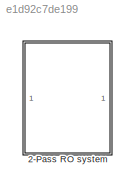
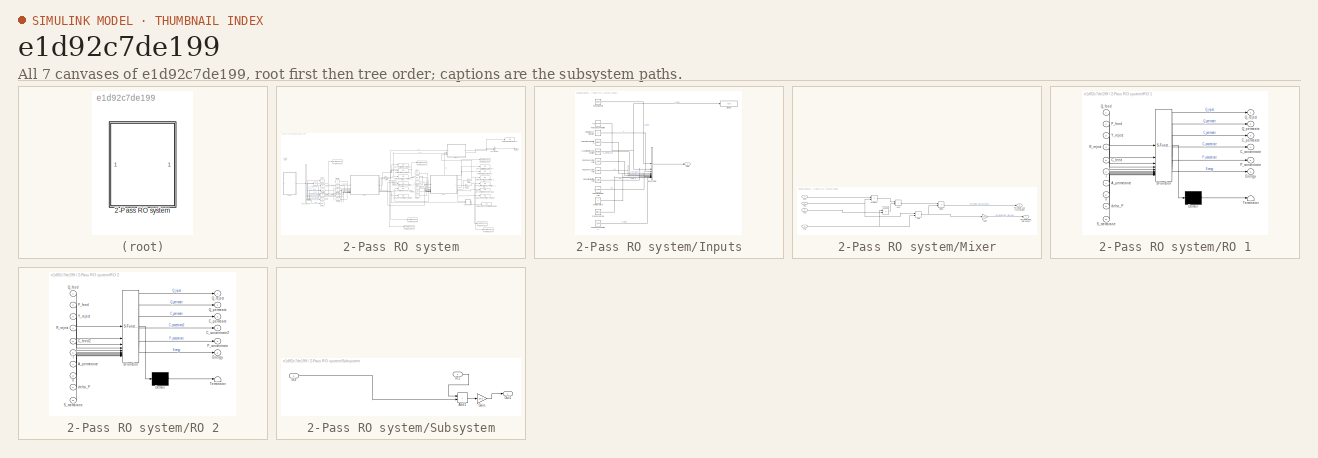
[diagram: thumbnail index - all 7 canvases of the model, root first then tree order]
MODEL slx_e1d92c7de199
KIND model
CONFIG AbsTol = auto
CONFIG EnableMultiTasking = off
CONFIG FixedStep = auto
CONFIG MaxStep = auto
CONFIG MinStep = auto
CONFIG RelTol = 1e-3
CONFIG SampleTimeConstraint = Unconstrained
CONFIG SolverName = VariableStepAuto
CONFIG StartTime = 0.0
CONFIG StopTime = 7*3600
WORKSPACE source: mxarray member
WORKSPACE H2_D = 74
WORKSPACE H2_R = 4124.48151676
WORKSPACE H2_T = [-56.55 -50 -40 -30 -20 -10 -5 -4 -3 -2 -1 0 ... (52 elements, 1x52)]
WORKSPACE H2_h = [2783.66044046 2873.94181646 3012.62601981 3152.22537302 3292.62486344 3433.7213836 3504.50184296 3518.67512521 3532.85394544 3547.03822323 3561.22787913 3575.42283463 ... (52 elements, 1x52)]
WORKSPACE H2_k = [142.834673487 146.602208511 152.236222043 157.732550942 163.09765294 168.338595937 170.914793442 171.426608923 171.937300227 172.446874689 172.955339635 173.462702375 ... (52 elements, 1x52)]
WORKSPACE H2_mu = [7.13280985169 7.28192581803 7.50683010986 7.72860158312 7.94743907375 8.16352107178 8.27057966039 8.29191522386 8.31322574339 8.33451136221 8.35577222214 8.37700846366 ... (52 elements, 1x52)]
WORKSPACE N2_R = 296.802103844
WORKSPACE N2_T = [-56.55 -50 -40 -30 -20 -10 -5 -4 -3 -2 -1 0 ... (52 elements, 1x52)]
WORKSPACE N2_h = [224.312019476 231.141016529 241.564116975 251.984329606 262.402210767 272.818266127 278.025759131 279.06722248 280.10867517 281.150117667 282.191550441 283.232973957 ... (52 elements, 1x52)]
WORKSPACE N2_k = [19.6296532607 20.1533289725 20.9436243616 21.7231523445 22.4923063139 23.2514823267 23.6274403303 23.7023472872 23.7771601873 23.8518793809 23.9265052168 24.0010380424 ... (52 elements, 1x52)]
WORKSPACE N2_mu = [13.7948920665 14.1367187352 14.6513506072 15.1575394446 15.6556177861 16.1459023391 16.3882166949 16.4364580271 16.4846261831 16.532721447 16.5807441017 16.6286944287 ... (52 elements, 1x52)]
WORKSPACE O2_D = 18
WORKSPACE O2_R = 259.836612623
WORKSPACE O2_T = [-56.55 -50 -40 -30 -20 -10 -5 -4 -3 -2 -1 0 ... (52 elements, 1x52)]
WORKSPACE O2_h = [196.314045635 202.302438243 211.445560194 220.590899229 229.740231593 238.895348953 243.475641264 244.39194743 245.308340402 246.224821996 247.14139403 248.05805832 ... (52 elements, 1x52)]
WORKSPACE O2_k = [19.6661951881 20.2224765128 21.0645207725 21.898029696 22.7232456338 23.5404090718 23.9460452976 24.0269406553 24.1077592592 24.1885013406 24.2691671302 24.349756858 ... (52 elements, 1x52)]
WORKSPACE O2_mu = [15.7665575307 16.1727626079 16.7849249434 17.3877315055 17.9815180942 18.5666055809 18.8559834763 18.9136105725 18.9711555252 19.0286186248 19.0860001607 19.1433004205 ... (52 elements, 1x52)]
WORKSPACE Op_Pressure = 40
WORKSPACE PEM_Efficiency = 0.9
WORKSPACE Power_suppy = 62000
WORKSPACE Sig: Simulink.Signal (value not decoded)
WORKSPACE env_T = 15
WORKSPACE env_p = 0.101325
WORKSPACE exchanger_H = 2
WORKSPACE exchanger_L = 10
WORKSPACE exchanger_N_fins = 12000
WORKSPACE exchanger_N_tubes = 50
WORKSPACE exchanger_W = 0.5
WORKSPACE exchanger_air_area_fins = 11.5625
WORKSPACE exchanger_air_area_primary = 1.223125
WORKSPACE exchanger_eta_fin = 0.7
WORKSPACE exchanger_fin_spacing = 0.002
WORKSPACE exchanger_gap_H = 0.0192708333333
WORKSPACE exchanger_tube_H = 0.0015
WORKSPACE exchanger_tube_Leq = 2.5
WORKSPACE gas_pipe_D = 0.25
WORKSPACE solar_profile_power = [0 0 0 0 0 0 0.572 13.1 44.9 74.5 96.4 100 ... (24 elements, 24x1)]
WORKSPACE solar_profile_time = [0 3600 7200 10800 14400 18000 21600 25200 28800 32400 36000 39600 ... (24 elements, 24x1)]
WORKSPACE stack_D_gdl_A = 0.07
WORKSPACE stack_D_gdl_C = 0.07
WORKSPACE stack_alpha = 0.7
WORKSPACE stack_area = 175500
WORKSPACE stack_io = 1.3251
WORKSPACE stack_mea_cp = 870
WORKSPACE stack_mea_rho = 1800
WORKSPACE stack_membrane_MW = 1.1
WORKSPACE stack_membrane_rho = 2000
WORKSPACE stack_num_cells = 12500
WORKSPACE stack_num_channels = 8
WORKSPACE stack_t_gdl_A = 25
WORKSPACE stack_t_gdl_C = 250
WORKSPACE stack_t_membrane = 125
WORKSPACE stack_w_channels = 1
WORKSPACE water_pipe_D = 0.25
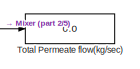
[diagram: 2-Pass RO system - part 1/5, top right region]
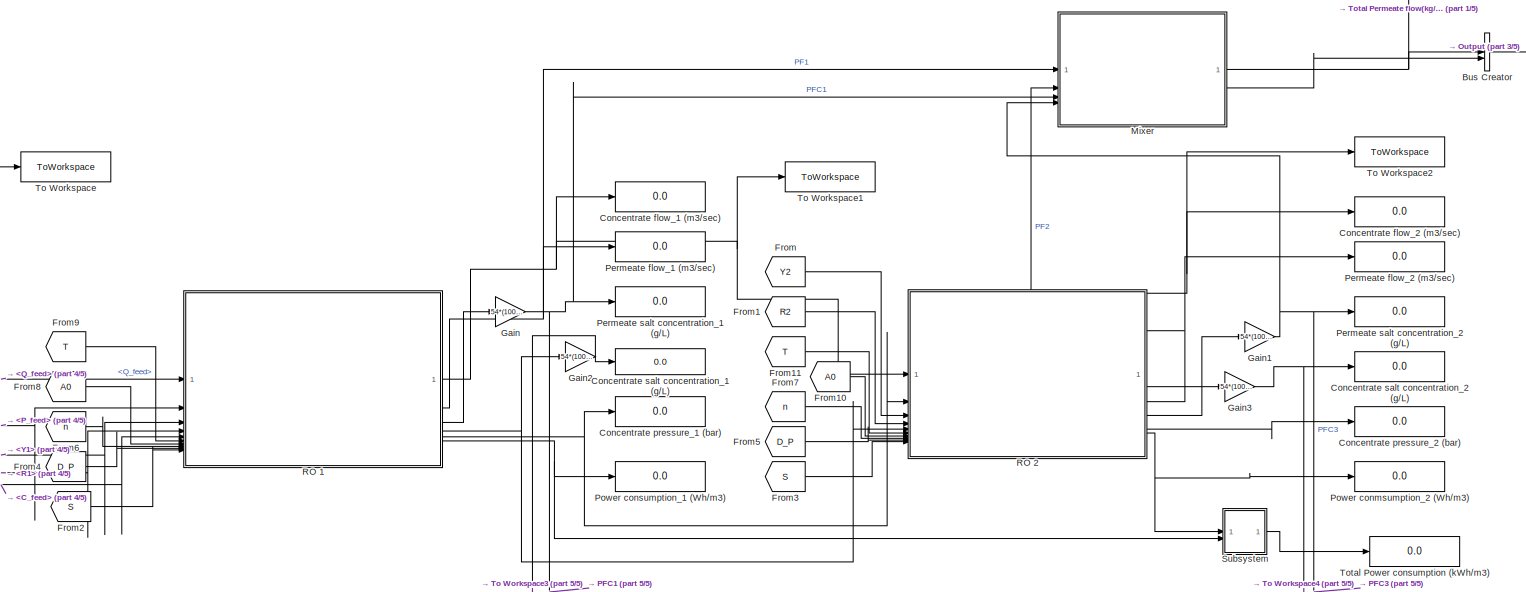
[diagram: 2-Pass RO system - part 2/5, central region]
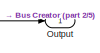
[diagram: 2-Pass RO system - part 3/5, top right region]
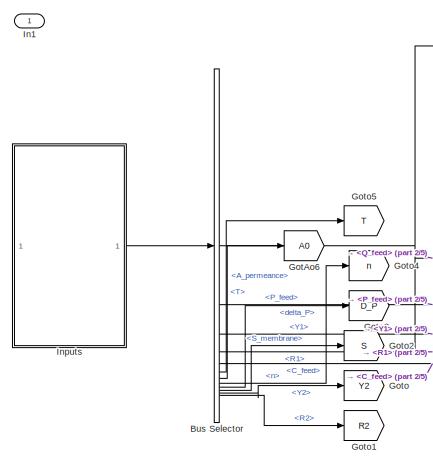
[diagram: 2-Pass RO system - part 4/5, middle left region]
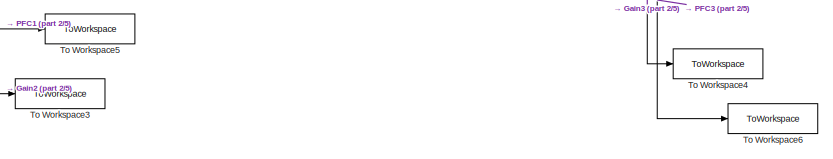
[diagram: 2-Pass RO system - part 5/5, bottom right region]
BLOCK [SubSystem] 2-Pass RO system
BLOCK [BusCreator] 2-Pass RO system/Bus Creator
  DisplayOption = bar
  InheritFromInputs = on
  Inputs = 2
BLOCK [BusSelector] 2-Pass RO system/Bus Selector
  OutputSignals = Q_feed,P_feed,Y1,R1,C_feed,T,A_permeance,n,delta_P,S_membrane,Y2,R2
BLOCK [Display] 2-Pass RO system/Concentrate flow_1 (m3//sec)
  Decimation = 1
BLOCK [Display] 2-Pass RO system/Concentrate flow_2 (m3//sec)
  Decimation = 1
BLOCK [Display] 2-Pass RO system/Concentrate pressure_1 (bar)
  Decimation = 1
BLOCK [Display] 2-Pass RO system/Concentrate pressure_2 (bar)
  Decimation = 1
BLOCK [Display] 2-Pass RO system/Concentrate salt concentration_1 (g//L)
  Decimation = 1
BLOCK [Display] 2-Pass RO system/Concentrate salt concentration_2 (g//L)
  Decimation = 1
BLOCK [From] 2-Pass RO system/From
  GotoTag = Y2
BLOCK [From] 2-Pass RO system/From1
  GotoTag = R2
BLOCK [From] 2-Pass RO system/From10
  GotoTag = A0
BLOCK [From] 2-Pass RO system/From11
  GotoTag = T
BLOCK [From] 2-Pass RO system/From2
  GotoTag = S
BLOCK [From] 2-Pass RO system/From3
  GotoTag = S
BLOCK [From] 2-Pass RO system/From4
  GotoTag = D_P
BLOCK [From] 2-Pass RO system/From5
  GotoTag = D_P
BLOCK [From] 2-Pass RO system/From6
  GotoTag = n
BLOCK [From] 2-Pass RO system/From7
  GotoTag = n
BLOCK [From] 2-Pass RO system/From8
  GotoTag = A0
BLOCK [From] 2-Pass RO system/From9
  GotoTag = T
BLOCK [Gain] 2-Pass RO system/Gain
  Gain = 54*(1000/1025)
BLOCK [Gain] 2-Pass RO system/Gain1
  Gain = 54*(1000/1025)
BLOCK [Gain] 2-Pass RO system/Gain2
  Gain = 54*(1000/1025)
BLOCK [Gain] 2-Pass RO system/Gain3
  Gain = 54*(1000/1025)
BLOCK [Goto] 2-Pass RO system/GotAo6
  GotoTag = A0
BLOCK [Goto] 2-Pass RO system/Goto
  GotoTag = Y2
BLOCK [Goto] 2-Pass RO system/Goto1
  GotoTag = R2
BLOCK [Goto] 2-Pass RO system/Goto2
  GotoTag = S
BLOCK [Goto] 2-Pass RO system/Goto3
  GotoTag = D_P
BLOCK [Goto] 2-Pass RO system/Goto4
  GotoTag = n
BLOCK [Goto] 2-Pass RO system/Goto5
  GotoTag = T
BLOCK [Inport] 2-Pass RO system/In1
BLOCK [SubSystem] 2-Pass RO system/Inputs
BLOCK [Constant] 2-Pass RO system/Inputs/Area of membrane section
  Value = S_membrane
BLOCK [BusCreator] 2-Pass RO system/Inputs/Bus Creator
  DisplayOption = bar
  InheritFromInputs = on
  Inputs = 12
BLOCK [Display] 2-Pass RO system/Inputs/Display
  Decimation = 1
BLOCK [Constant] 2-Pass RO system/Inputs/Feed Concentration
  Value = C_feed*0.018963
BLOCK [Constant] 2-Pass RO system/Inputs/Feed Concentration1
  Value = P_feed
BLOCK [Constant] 2-Pass RO system/Inputs/Feed Flow rate
  Value = Q_feed
BLOCK [Constant] 2-Pass RO system/Inputs/NMumber of Modules
  Value = n
BLOCK [Outport] 2-Pass RO system/Inputs/Out1
BLOCK [Constant] 2-Pass RO system/Inputs/Pressure drop
  Value = delta_P
BLOCK [Constant] 2-Pass RO system/Inputs/RO1 Conversion rate
  Value = Y1_reject
BLOCK [Constant] 2-Pass RO system/Inputs/RO1 salt rejection rate
  Value = R1_reject
BLOCK [Constant] 2-Pass RO system/Inputs/RO2 Conversion rate
  Value = Y2_reject
BLOCK [Constant] 2-Pass RO system/Inputs/RO2 salt rejection rate
  Value = R2_reject
BLOCK [Constant] 2-Pass RO system/Inputs/Solvent Permeability
  Value = A_permeance
BLOCK [Constant] 2-Pass RO system/Inputs/Temperature
  Value = T
BLOCK [SubSystem] 2-Pass RO system/Mixer
BLOCK [Sum] 2-Pass RO system/Mixer/Add
  IconShape = rectangular
BLOCK [Sum] 2-Pass RO system/Mixer/Add1
  IconShape = rectangular
BLOCK [Product] 2-Pass RO system/Mixer/Divide
  Inputs = */
BLOCK [Inport] 2-Pass RO system/Mixer/FC1
  Port = 3
BLOCK [Inport] 2-Pass RO system/Mixer/FC2
  Port = 4
BLOCK [Inport] 2-Pass RO system/Mixer/FR1
BLOCK [Inport] 2-Pass RO system/Mixer/FR2
  NameLocation = top
  Port = 2
BLOCK [Gain] 2-Pass RO system/Mixer/Gain4
  Gain = 1000
BLOCK [Outport] 2-Pass RO system/Mixer/Permeate_salt_concentration
  Port = 2
BLOCK [Product] 2-Pass RO system/Mixer/Product
BLOCK [Product] 2-Pass RO system/Mixer/Product1
BLOCK [Outport] 2-Pass RO system/Mixer/permeate_flow_rate(kg//sec)
BLOCK [Outport] 2-Pass RO system/Output
BLOCK [Display] 2-Pass RO system/Permeate  salt concentration_1 (g//L)
  Decimation = 1
BLOCK [Display] 2-Pass RO system/Permeate  salt concentration_2 (g//L)
  Decimation = 1
BLOCK [Display] 2-Pass RO system/Permeate flow_1 (m3//sec)
  Decimation = 1
BLOCK [Display] 2-Pass RO system/Permeate flow_2 (m3//sec) 
  Decimation = 1
BLOCK [Display] 2-Pass RO system/Power conmsumption_2 (Wh//m3)
  Decimation = 1
BLOCK [Display] 2-Pass RO system/Power consumption_1 (Wh//m3)
  Decimation = 1
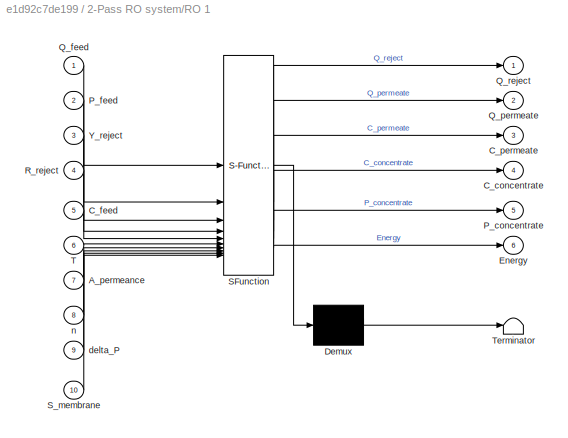
BLOCK [SubSystem] 2-Pass RO system/RO 1
  ErrorFcn = Stateflow.Translate.translate
  LibrarySourceBlock = simulink/User-Defined\nFunctions/MATLAB Function
  PermitHierarchicalResolution = ExplicitOnly
  SFBlockType = MATLAB Function
  TreatAsAtomicUnit = on
BLOCK [Demux] 2-Pass RO system/RO 1/ Demux 
  Outputs = 1
BLOCK [S-Function] 2-Pass RO system/RO 1/ SFunction 
  EnableBusSupport = on
  FunctionName = sf_sfun
  PortCounts = [10 7]
  SFcnIsStateOwnerBlock = off
  SFunctionDeploymentMode = off
  Tag = Stateflow S-Function 5
BLOCK [Terminator] 2-Pass RO system/RO 1/ Terminator 
BLOCK [Inport] 2-Pass RO system/RO 1/A_permeance
  Port = 7
BLOCK [Outport] 2-Pass RO system/RO 1/C_concentrate
  Port = 4
BLOCK [Inport] 2-Pass RO system/RO 1/C_feed
  Port = 5
BLOCK [Outport] 2-Pass RO system/RO 1/C_permeate
  Port = 3
BLOCK [Outport] 2-Pass RO system/RO 1/Energy
  Port = 6
BLOCK [Outport] 2-Pass RO system/RO 1/P_concentrate
  Port = 5
BLOCK [Inport] 2-Pass RO system/RO 1/P_feed
  Port = 2
BLOCK [Inport] 2-Pass RO system/RO 1/Q_feed
BLOCK [Outport] 2-Pass RO system/RO 1/Q_permeate
  Port = 2
BLOCK [Outport] 2-Pass RO system/RO 1/Q_reject
BLOCK [Inport] 2-Pass RO system/RO 1/R_reject
  Port = 4
BLOCK [Inport] 2-Pass RO system/RO 1/S_membrane
  Port = 10
BLOCK [Inport] 2-Pass RO system/RO 1/T
  Port = 6
BLOCK [Inport] 2-Pass RO system/RO 1/Y_reject
  Port = 3
BLOCK [Inport] 2-Pass RO system/RO 1/delta_P
  Port = 9
BLOCK [Inport] 2-Pass RO system/RO 1/n
  Port = 8
BLOCK [SubSystem] 2-Pass RO system/RO 2
  ErrorFcn = Stateflow.Translate.translate
  LibrarySourceBlock = simulink/User-Defined\nFunctions/MATLAB Function
  PermitHierarchicalResolution = ExplicitOnly
  SFBlockType = MATLAB Function
  TreatAsAtomicUnit = on
BLOCK [Demux] 2-Pass RO system/RO 2/ Demux 
  Outputs = 1
BLOCK [S-Function] 2-Pass RO system/RO 2/ SFunction 
  EnableBusSupport = on
  FunctionName = sf_sfun
  PortCounts = [10 7]
  SFcnIsStateOwnerBlock = off
  SFunctionDeploymentMode = off
  Tag = Stateflow S-Function 6
BLOCK [Terminator] 2-Pass RO system/RO 2/ Terminator 
BLOCK [Inport] 2-Pass RO system/RO 2/A_permeance
  Port = 7
BLOCK [Outport] 2-Pass RO system/RO 2/C_concentrate2
  Port = 4
BLOCK [Inport] 2-Pass RO system/RO 2/C_feed2
  Port = 5
BLOCK [Outport] 2-Pass RO system/RO 2/C_permeate
  Port = 3
BLOCK [Outport] 2-Pass RO system/RO 2/Energy
  Port = 6
BLOCK [Outport] 2-Pass RO system/RO 2/P_concentrate
  Port = 5
BLOCK [Inport] 2-Pass RO system/RO 2/P_feed
  Port = 2
BLOCK [Inport] 2-Pass RO system/RO 2/Q_feed
BLOCK [Outport] 2-Pass RO system/RO 2/Q_permeate
  Port = 2
BLOCK [Outport] 2-Pass RO system/RO 2/Q_reject
BLOCK [Inport] 2-Pass RO system/RO 2/R_reject
  Port = 4
BLOCK [Inport] 2-Pass RO system/RO 2/S_membrane
  Port = 10
BLOCK [Inport] 2-Pass RO system/RO 2/T
  Port = 6
BLOCK [Inport] 2-Pass RO system/RO 2/Y_reject
  Port = 3
BLOCK [Inport] 2-Pass RO system/RO 2/delta_P
  Port = 9
BLOCK [Inport] 2-Pass RO system/RO 2/n
  Port = 8
BLOCK [SubSystem] 2-Pass RO system/Subsystem
BLOCK [Sum] 2-Pass RO system/Subsystem/Add1
  IconShape = rectangular
BLOCK [Gain] 2-Pass RO system/Subsystem/Gain
  Gain = 1e-3
BLOCK [Inport] 2-Pass RO system/Subsystem/In1
BLOCK [Inport] 2-Pass RO system/Subsystem/In2
  Port = 2
BLOCK [Outport] 2-Pass RO system/Subsystem/Out1
BLOCK [ToWorkspace] 2-Pass RO system/To Workspace
  FixptAsFi = on
  MaxDataPoints = inf
  SampleTime = -1
  VariableName = Supply
BLOCK [ToWorkspace] 2-Pass RO system/To Workspace1
  FixptAsFi = on
  MaxDataPoints = inf
  SampleTime = -1
  VariableName = Brine1
BLOCK [ToWorkspace] 2-Pass RO system/To Workspace2
  FixptAsFi = on
  MaxDataPoints = inf
  SampleTime = -1
  VariableName = Brine2
BLOCK [ToWorkspace] 2-Pass RO system/To Workspace3
  FixptAsFi = on
  MaxDataPoints = inf
  SampleTime = -1
  VariableName = C_RO1
BLOCK [ToWorkspace] 2-Pass RO system/To Workspace4
  FixptAsFi = on
  MaxDataPoints = inf
  SampleTime = -1
  VariableName = C_RO2
BLOCK [ToWorkspace] 2-Pass RO system/To Workspace5
  FixptAsFi = on
  MaxDataPoints = inf
  SampleTime = -1
  VariableName = cP_RO2
BLOCK [ToWorkspace] 2-Pass RO system/To Workspace6
  FixptAsFi = on
  MaxDataPoints = inf
  SampleTime = -1
  VariableName = cP_RO1
BLOCK [Display] 2-Pass RO system/Total Permeate flow(kg//sec)
  Decimation = 1
BLOCK [Display] 2-Pass RO system/Total Power consumption (kWh//m3)
  Decimation = 1
LINE 2-Pass RO system/Bus Creator:1 -> 2-Pass RO system/Output:1
NET 2-Pass RO system/Bus Selector:1 -> 2-Pass RO system/RO 1:1, 2-Pass RO system/To Workspace:1
LINE 2-Pass RO system/Bus Selector:10 -> 2-Pass RO system/Goto2:1
LINE 2-Pass RO system/Bus Selector:11 -> 2-Pass RO system/Goto:1
LINE 2-Pass RO system/Bus Selector:12 -> 2-Pass RO system/Goto1:1
LINE 2-Pass RO system/Bus Selector:2 -> 2-Pass RO system/RO 1:2
LINE 2-Pass RO system/Bus Selector:3 -> 2-Pass RO system/RO 1:3
LINE 2-Pass RO system/Bus Selector:4 -> 2-Pass RO system/RO 1:4
LINE 2-Pass RO system/Bus Selector:5 -> 2-Pass RO system/RO 1:5
LINE 2-Pass RO system/Bus Selector:6 -> 2-Pass RO system/Goto5:1
LINE 2-Pass RO system/Bus Selector:7 -> 2-Pass RO system/GotAo6:1
LINE 2-Pass RO system/Bus Selector:8 -> 2-Pass RO system/Goto4:1
LINE 2-Pass RO system/Bus Selector:9 -> 2-Pass RO system/Goto3:1
LINE 2-Pass RO system/From10:1 -> 2-Pass RO system/RO 2:7
LINE 2-Pass RO system/From11:1 -> 2-Pass RO system/RO 2:6
LINE 2-Pass RO system/From1:1 -> 2-Pass RO system/RO 2:4
LINE 2-Pass RO system/From2:1 -> 2-Pass RO system/RO 1:10
LINE 2-Pass RO system/From3:1 -> 2-Pass RO system/RO 2:10
LINE 2-Pass RO system/From4:1 -> 2-Pass RO system/RO 1:9
LINE 2-Pass RO system/From5:1 -> 2-Pass RO system/RO 2:9
LINE 2-Pass RO system/From6:1 -> 2-Pass RO system/RO 1:8
LINE 2-Pass RO system/From7:1 -> 2-Pass RO system/RO 2:8
LINE 2-Pass RO system/From8:1 -> 2-Pass RO system/RO 1:7
LINE 2-Pass RO system/From9:1 -> 2-Pass RO system/RO 1:6
LINE 2-Pass RO system/From:1 -> 2-Pass RO system/RO 2:3
NET 2-Pass RO system/Gain1:1 -> 2-Pass RO system/Mixer:4, 2-Pass RO system/Permeate  salt concentration_2 (g//L):1, 2-Pass RO system/To Workspace6:1
NET 2-Pass RO system/Gain2:1 -> 2-Pass RO system/Concentrate salt concentration_1 (g//L):1, 2-Pass RO system/To Workspace3:1
NET 2-Pass RO system/Gain3:1 -> 2-Pass RO system/Concentrate salt concentration_2 (g//L):1, 2-Pass RO system/To Workspace4:1
NET 2-Pass RO system/Gain:1 -> 2-Pass RO system/Mixer:3, 2-Pass RO system/Permeate  salt concentration_1 (g//L):1, 2-Pass RO system/To Workspace5:1
LINE 2-Pass RO system/Inputs/Area of membrane section:1 -> 2-Pass RO system/Inputs/Bus Creator:5
LINE 2-Pass RO system/Inputs/Bus Creator:1 -> 2-Pass RO system/Inputs/Out1:1
LINE 2-Pass RO system/Inputs/Feed Concentration1:1 -> 2-Pass RO system/Inputs/Bus Creator:12
NET 2-Pass RO system/Inputs/Feed Concentration:1 -> 2-Pass RO system/Inputs/Bus Creator:2, 2-Pass RO system/Inputs/Display:1
LINE 2-Pass RO system/Inputs/Feed Flow rate:1 -> 2-Pass RO system/Inputs/Bus Creator:1
LINE 2-Pass RO system/Inputs/NMumber of Modules:1 -> 2-Pass RO system/Inputs/Bus Creator:3
LINE 2-Pass RO system/Inputs/Pressure drop:1 -> 2-Pass RO system/Inputs/Bus Creator:11
LINE 2-Pass RO system/Inputs/RO1 Conversion rate:1 -> 2-Pass RO system/Inputs/Bus Creator:6
LINE 2-Pass RO system/Inputs/RO1 salt rejection rate:1 -> 2-Pass RO system/Inputs/Bus Creator:8
LINE 2-Pass RO system/Inputs/RO2 Conversion rate:1 -> 2-Pass RO system/Inputs/Bus Creator:7
LINE 2-Pass RO system/Inputs/RO2 salt rejection rate:1 -> 2-Pass RO system/Inputs/Bus Creator:9
LINE 2-Pass RO system/Inputs/Solvent Permeability:1 -> 2-Pass RO system/Inputs/Bus Creator:4
LINE 2-Pass RO system/Inputs/Temperature:1 -> 2-Pass RO system/Inputs/Bus Creator:10
LINE 2-Pass RO system/Inputs:1 -> 2-Pass RO system/Bus Selector:1
LINE 2-Pass RO system/Mixer/Add1:1 -> 2-Pass RO system/Mixer/Divide:1
NET 2-Pass RO system/Mixer/Add:1 -> 2-Pass RO system/Mixer/Divide:2, 2-Pass RO system/Mixer/Gain4:1
LINE 2-Pass RO system/Mixer/Divide:1 -> 2-Pass RO system/Mixer/Permeate_salt_concentration:1
LINE 2-Pass RO system/Mixer/FC1:1 -> 2-Pass RO system/Mixer/Product:1
LINE 2-Pass RO system/Mixer/FC2:1 -> 2-Pass RO system/Mixer/Product1:2
NET 2-Pass RO system/Mixer/FR1:1 -> 2-Pass RO system/Mixer/Add:1, 2-Pass RO system/Mixer/Product:2
NET 2-Pass RO system/Mixer/FR2:1 -> 2-Pass RO system/Mixer/Add:2, 2-Pass RO system/Mixer/Product1:1
LINE 2-Pass RO system/Mixer/Gain4:1 -> 2-Pass RO system/Mixer/permeate_flow_rate(kg//sec):1
LINE 2-Pass RO system/Mixer/Product1:1 -> 2-Pass RO system/Mixer/Add1:2
LINE 2-Pass RO system/Mixer/Product:1 -> 2-Pass RO system/Mixer/Add1:1
NET 2-Pass RO system/Mixer:1 -> 2-Pass RO system/Bus Creator:1, 2-Pass RO system/Total Permeate flow(kg//sec):1
LINE 2-Pass RO system/Mixer:2 -> 2-Pass RO system/Bus Creator:2
NET 2-Pass RO system/RO 1:1 -> 2-Pass RO system/Concentrate flow_1 (m3//sec):1, 2-Pass RO system/RO 2:1, 2-Pass RO system/To Workspace1:1
NET 2-Pass RO system/RO 1:2 -> 2-Pass RO system/Mixer:1, 2-Pass RO system/Permeate flow_1 (m3//sec):1
LINE 2-Pass RO system/RO 1:3 -> 2-Pass RO system/Gain:1
NET 2-Pass RO system/RO 1:4 -> 2-Pass RO system/Gain2:1, 2-Pass RO system/RO 2:5
NET 2-Pass RO system/RO 1:5 -> 2-Pass RO system/Concentrate pressure_1 (bar):1, 2-Pass RO system/RO 2:2
NET 2-Pass RO system/RO 1:6 -> 2-Pass RO system/Power consumption_1 (Wh//m3):1, 2-Pass RO system/Subsystem:2
NET 2-Pass RO system/RO 2:1 -> 2-Pass RO system/Concentrate flow_2 (m3//sec):1, 2-Pass RO system/To Workspace2:1
NET 2-Pass RO system/RO 2:2 -> 2-Pass RO system/Mixer:2, 2-Pass RO system/Permeate flow_2 (m3//sec) :1
LINE 2-Pass RO system/RO 2:3 -> 2-Pass RO system/Gain1:1
LINE 2-Pass RO system/RO 2:4 -> 2-Pass RO system/Gain3:1
LINE 2-Pass RO system/RO 2:5 -> 2-Pass RO system/Concentrate pressure_2 (bar):1
NET 2-Pass RO system/RO 2:6 -> 2-Pass RO system/Power conmsumption_2 (Wh//m3):1, 2-Pass RO system/Subsystem:1
LINE 2-Pass RO system/Subsystem/Add1:1 -> 2-Pass RO system/Subsystem/Gain:1
LINE 2-Pass RO system/Subsystem/Gain:1 -> 2-Pass RO system/Subsystem/Out1:1
LINE 2-Pass RO system/Subsystem/In1:1 -> 2-Pass RO system/Subsystem/Add1:1
LINE 2-Pass RO system/Subsystem/In2:1 -> 2-Pass RO system/Subsystem/Add1:2
LINE 2-Pass RO system/Subsystem:1 -> 2-Pass RO system/Total Power consumption (kWh//m3):1
note: NET lines group one-source signal fan-out (src -> all destinations, sorted); 1:1 wires keep LINE
CHART 2-Pass RO system/RO 1 states=1 transitions=1
  STATE_LABEL 'eML_blk_kernel()'
  STATE_LABEL 'SCRIPT:\nfunction [Q_reject, Q_permeate, C_permeate, C_concentrate, P_concentrate, Energy] = RO_module(Q_feed, P_feed, Y_reject, R_reject, C_feed, T, A_permeance, n, delta_P, S_membrane)\n\n% This function calculates various parameters in a reverse osmosis (RO) desalination process.\n\n% Input Parameters:\n% Q_feed: Feed water flow rate (m^3/s)\n% P_feed: Feed water pressure (Pa)\n% Y_reject: Fraction of ...<+2449ch>'
CHART 2-Pass RO system/RO 2 states=1 transitions=1
  STATE_LABEL 'eML_blk_kernel()'
  STATE_LABEL 'SCRIPT:\nfunction [Q_reject, Q_permeate, C_permeate, C_concentrate2, P_concentrate, Energy]  = RO_module (Q_feed, P_feed, Y_reject, R_reject, C_feed2, T, A_permeance, n, delta_P, S_membrane)\n% further details see 1 RO stage\n\n% all the equations are derived from the mass balance of the desalination\n% process\nQ_reject = Q_feed .* Y_reject;                                      % concentrate flow rate\n...<+1392ch>'
CHART  states=0 transitions=0
CHART  states=0 transitions=0
